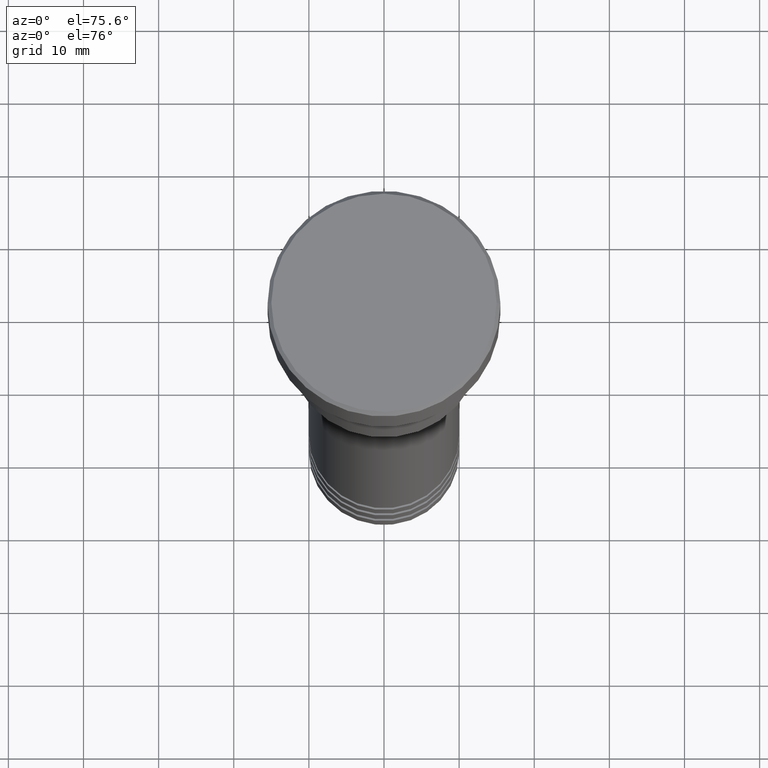
[diagram: clean part render]
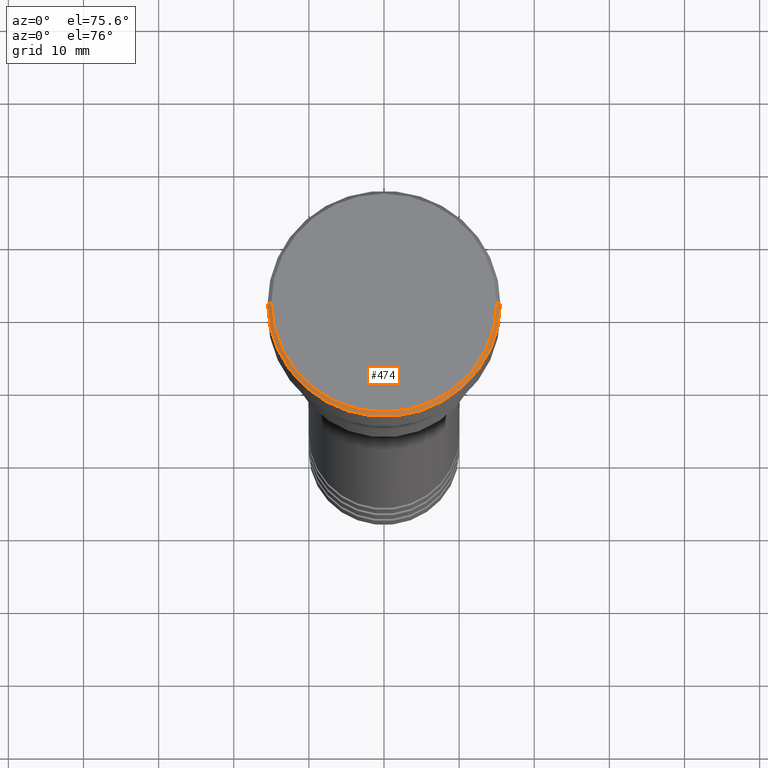
[diagram: same view with one face highlighted and labeled with its STEP entity id]
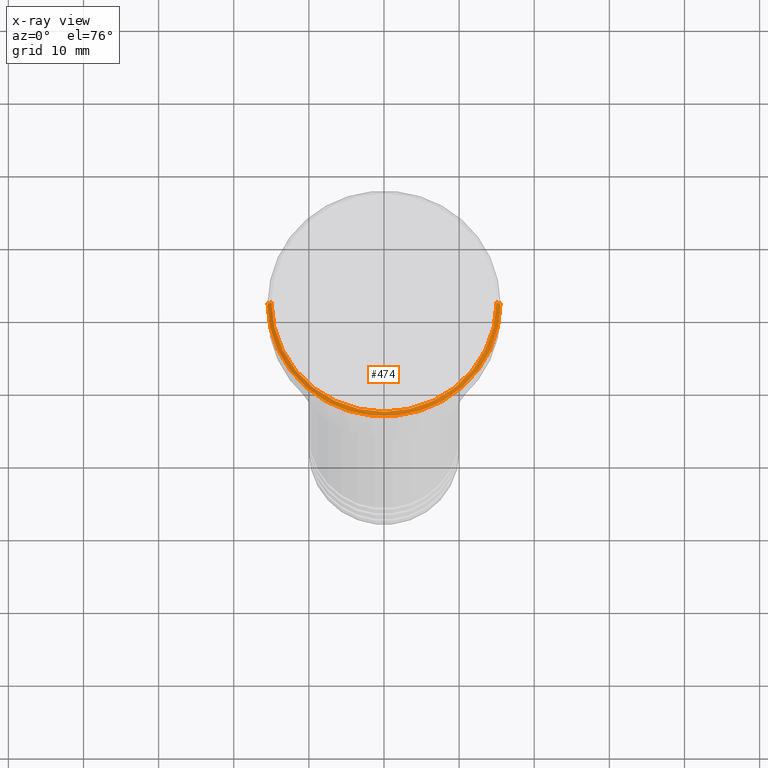
[diagram: x-ray of the same camera — body ghosted, the highlighted face saturated]
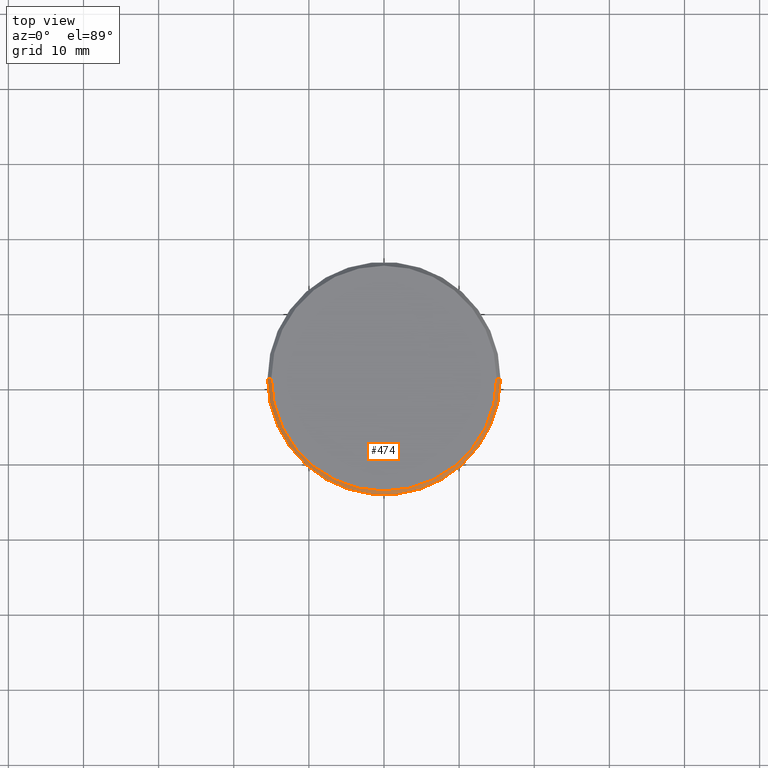
[diagram: same view with one face highlighted and labeled with its STEP entity id]
A machine part, auxiliary view. The second image highlights one B-rep face of the part: STEP entity #474.
The next image is the same camera in x-ray: the body ghosted, the highlighted face saturated — about 0% of this face is hidden behind the body in this view.
A second angle (top view) of the same face is appended — the face is thin or edge-on in the first view.
In plain terms, the highlighted conical surface has half-angle 45 deg.
Its self-contained STEP definition (entity closure, byte-faithful):
#44 = CARTESIAN_POINT ( 'NONE',  ( 0.000000000000000000, 0.000000000000000000, 0.000000000000000000 ) ) ;
#119 = ORIENTED_EDGE ( 'NONE', *, *, #401, .F. ) ;
#124 = DIRECTION ( 'NONE',  ( -0.000000000000000000, -0.000000000000000000, 1.000000000000000000 ) ) ;
#147 = LINE ( 'NONE', #610, #253 ) ;
#166 = VERTEX_POINT ( 'NONE', #685 ) ;
#186 = EDGE_LOOP ( 'NONE', ( #323, #292, #731, #119 ) ) ;
#203 = DIRECTION ( 'NONE',  ( 0.000000000000000000, 0.000000000000000000, -1.000000000000000000 ) ) ;
#216 = VERTEX_POINT ( 'NONE', #815 ) ;
#253 = VECTOR ( 'NONE', #861, 1000.000000000000000 ) ;
#292 = ORIENTED_EDGE ( 'NONE', *, *, #421, .F. ) ;
#301 = DIRECTION ( 'NONE',  ( 1.000000000000000000, 0.000000000000000000, 0.000000000000000000 ) ) ;
#323 = ORIENTED_EDGE ( 'NONE', *, *, #1034, .F. ) ;
#347 = VECTOR ( 'NONE', #998, 1000.000000000000000 ) ;
#365 = AXIS2_PLACEMENT_3D ( 'NONE', #1131, #1145, #301 ) ;
#401 = EDGE_CURVE ( 'NONE', #166, #593, #1119, .T. ) ;
#421 = EDGE_CURVE ( 'NONE', #216, #642, #478, .T. ) ;
#474 = ADVANCED_FACE ( 'NONE', ( #858 ), #653, .T. ) ;
#478 = CIRCLE ( 'NONE', #728, 15.00000000000000000 ) ;
#499 = AXIS2_PLACEMENT_3D ( 'NONE', #44, #203, #839 ) ;
#585 = DIRECTION ( 'NONE',  ( 1.000000000000000000, 0.000000000000000000, 0.000000000000000000 ) ) ;
#593 = VERTEX_POINT ( 'NONE', #606 ) ;
#606 = CARTESIAN_POINT ( 'NONE',  ( -15.50000000000000000, 1.898202538678397557E-15, -0.4999999999999987232 ) ) ;
#610 = CARTESIAN_POINT ( 'NONE',  ( 15.00000000000000000, 1.836970198721029589E-15, 0.000000000000000000 ) ) ;
#628 = LINE ( 'NONE', #1005, #347 ) ;
#642 = VERTEX_POINT ( 'NONE', #719 ) ;
#653 = CONICAL_SURFACE ( 'NONE', #499, 15.00000000000000000, 0.7853981633974500554 ) ;
#685 = CARTESIAN_POINT ( 'NONE',  ( 15.50000000000000000, 0.000000000000000000, -0.4999999999999987232 ) ) ;
#719 = CARTESIAN_POINT ( 'NONE',  ( 15.00000000000000000, 1.867586368699713376E-15, 0.000000000000000000 ) ) ;
#720 = EDGE_CURVE ( 'NONE', #216, #593, #628, .T. ) ;
#728 = AXIS2_PLACEMENT_3D ( 'NONE', #942, #124, #585 ) ;
#731 = ORIENTED_EDGE ( 'NONE', *, *, #720, .T. ) ;
#815 = CARTESIAN_POINT ( 'NONE',  ( -15.00000000000000000, 0.000000000000000000, 0.000000000000000000 ) ) ;
#839 = DIRECTION ( 'NONE',  ( -1.000000000000000000, 0.000000000000000000, 0.000000000000000000 ) ) ;
#858 = FACE_OUTER_BOUND ( 'NONE', #186, .T. ) ;
#861 = DIRECTION ( 'NONE',  ( 0.7071067811865487940, 8.659560562354950115E-17, -0.7071067811865463515 ) ) ;
#942 = CARTESIAN_POINT ( 'NONE',  ( 0.000000000000000000, 0.000000000000000000, 0.000000000000000000 ) ) ;
#998 = DIRECTION ( 'NONE',  ( -0.7071067811865487940, 0.000000000000000000, -0.7071067811865463515 ) ) ;
#1005 = CARTESIAN_POINT ( 'NONE',  ( -15.00000000000000000, 0.000000000000000000, 0.000000000000000000 ) ) ;
#1034 = EDGE_CURVE ( 'NONE', #642, #166, #147, .T. ) ;
#1119 = CIRCLE ( 'NONE', #365, 15.50000000000000000 ) ;
#1131 = CARTESIAN_POINT ( 'NONE',  ( 0.000000000000000000, 0.000000000000000000, -0.4999999999999987232 ) ) ;
#1145 = DIRECTION ( 'NONE',  ( 0.000000000000000000, 0.000000000000000000, -1.000000000000000000 ) ) ;